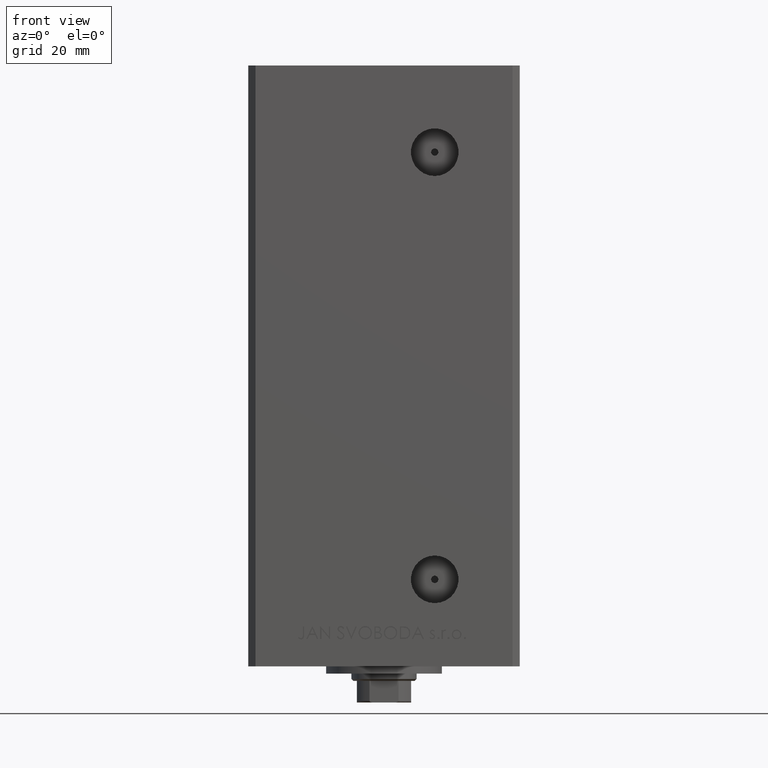
[diagram: clean part render]
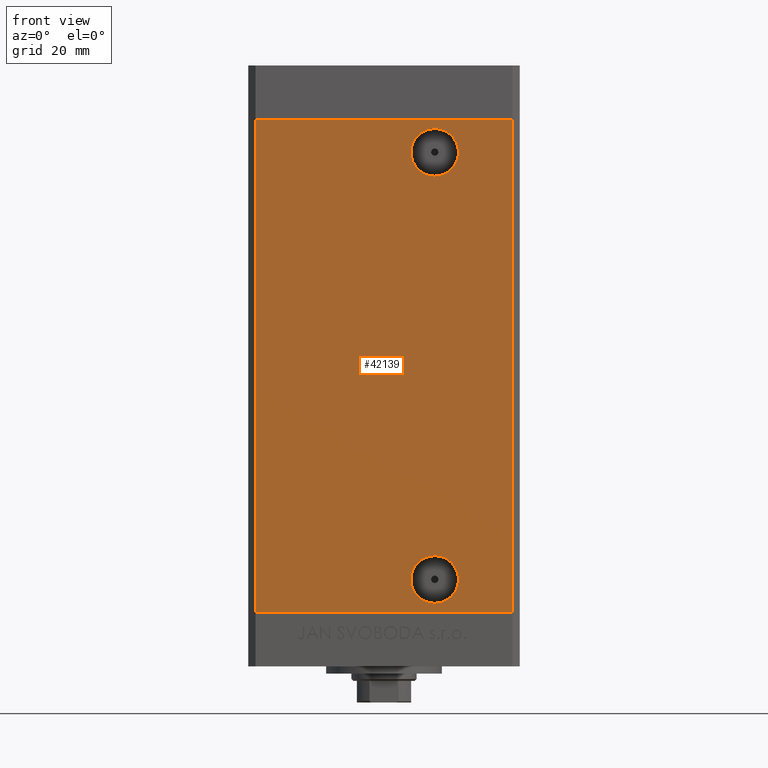
[diagram: same view with one face highlighted and labeled with its STEP entity id]
A machine part, front view. The second image highlights one B-rep face of the part: STEP entity #42139.
In plain terms, the highlighted planar face has unit normal (0, 1, 0).
Its self-contained STEP definition (entity closure, byte-faithful):
#856 = CARTESIAN_POINT ( 'NONE',  ( 13.99999999999999112, -32.50000000000000000, 120.4200000000000017 ) ) ;
#876 = DIRECTION ( 'NONE',  ( 0.000000000000000000, -0.000000000000000000, 1.000000000000000000 ) ) ;
#1252 = EDGE_CURVE ( 'NONE', #31384, #7564, #14773, .T. ) ;
#1285 = DIRECTION ( 'NONE',  ( 0.000000000000000000, 0.000000000000000000, -1.000000000000000000 ) ) ;
#1330 = LINE ( 'NONE', #48034, #8694 ) ;
#1381 = CARTESIAN_POINT ( 'NONE',  ( 13.99999999999999112, -32.50000000000000000, 127.0000000000000000 ) ) ;
#2718 = AXIS2_PLACEMENT_3D ( 'NONE', #22198, #3848, #15407 ) ;
#3104 = CARTESIAN_POINT ( 'NONE',  ( -35.49999999999999289, -32.50000000000000000, 0.000000000000000000 ) ) ;
#3848 = DIRECTION ( 'NONE',  ( -0.000000000000000000, 1.000000000000000000, -0.000000000000000000 ) ) ;
#3893 = CIRCLE ( 'NONE', #24001, 6.580000000000002736 ) ;
#4568 = DIRECTION ( 'NONE',  ( 0.000000000000000000, -1.000000000000000000, 0.000000000000000000 ) ) ;
#4901 = FACE_BOUND ( 'NONE', #21600, .T. ) ;
#5152 = FACE_BOUND ( 'NONE', #44222, .T. ) ;
#5408 = DIRECTION ( 'NONE',  ( -0.000000000000000000, 1.000000000000000000, -0.000000000000000000 ) ) ;
#5606 = DIRECTION ( 'NONE',  ( 1.000000000000000000, 0.000000000000000000, 0.000000000000000000 ) ) ;
#5868 = CARTESIAN_POINT ( 'NONE',  ( 35.49999999999999289, -32.50000000000000000, 136.0000000000000000 ) ) ;
#6376 = EDGE_CURVE ( 'NONE', #47390, #32452, #7618, .T. ) ;
#7422 = AXIS2_PLACEMENT_3D ( 'NONE', #35307, #20473, #876 ) ;
#7564 = VERTEX_POINT ( 'NONE', #856 ) ;
#7618 = CIRCLE ( 'NONE', #35685, 6.579999999999998295 ) ;
#7670 = EDGE_CURVE ( 'NONE', #32386, #17274, #33732, .T. ) ;
#7911 = AXIS2_PLACEMENT_3D ( 'NONE', #43011, #4568, #1285 ) ;
#8694 = VECTOR ( 'NONE', #5606, 1000.000000000000000 ) ;
#8967 = CARTESIAN_POINT ( 'NONE',  ( -35.49999999999999289, -32.50000000000000000, 136.0000000000000000 ) ) ;
#11901 = DIRECTION ( 'NONE',  ( -0.000000000000000000, -0.000000000000000000, -1.000000000000000000 ) ) ;
#12323 = CARTESIAN_POINT ( 'NONE',  ( 13.99999999999999112, -32.50000000000000000, 2.420000000000009699 ) ) ;
#13010 = VECTOR ( 'NONE', #32774, 1000.000000000000000 ) ;
#13264 = VERTEX_POINT ( 'NONE', #8967 ) ;
#14315 = EDGE_CURVE ( 'NONE', #13264, #32386, #1330, .T. ) ;
#14773 = CIRCLE ( 'NONE', #2718, 6.580000000000002736 ) ;
#15407 = DIRECTION ( 'NONE',  ( 0.000000000000000000, 0.000000000000000000, -1.000000000000000000 ) ) ;
#15575 = ORIENTED_EDGE ( 'NONE', *, *, #40797, .T. ) ;
#16323 = VERTEX_POINT ( 'NONE', #3104 ) ;
#17274 = VERTEX_POINT ( 'NONE', #18689 ) ;
#17749 = ORIENTED_EDGE ( 'NONE', *, *, #7670, .F. ) ;
#17808 = VECTOR ( 'NONE', #11901, 1000.000000000000000 ) ;
#18435 = LINE ( 'NONE', #33514, #13010 ) ;
#18633 = ORIENTED_EDGE ( 'NONE', *, *, #6376, .F. ) ;
#18689 = CARTESIAN_POINT ( 'NONE',  ( 35.49999999999999289, -32.50000000000000000, 0.000000000000000000 ) ) ;
#18721 = ORIENTED_EDGE ( 'NONE', *, *, #40952, .T. ) ;
#20098 = EDGE_CURVE ( 'NONE', #7564, #31384, #3893, .T. ) ;
#20225 = FACE_OUTER_BOUND ( 'NONE', #37758, .T. ) ;
#20473 = DIRECTION ( 'NONE',  ( 0.000000000000000000, 1.000000000000000000, 0.000000000000000000 ) ) ;
#20845 = CARTESIAN_POINT ( 'NONE',  ( 35.49999999999999289, -32.50000000000000000, 136.0000000000000000 ) ) ;
#21600 = EDGE_LOOP ( 'NONE', ( #35843, #18633 ) ) ;
#22198 = CARTESIAN_POINT ( 'NONE',  ( 13.99999999999999112, -32.50000000000000000, 127.0000000000000000 ) ) ;
#23775 = CARTESIAN_POINT ( 'NONE',  ( 13.99999999999999112, -32.50000000000000000, 9.000000000000007105 ) ) ;
#24001 = AXIS2_PLACEMENT_3D ( 'NONE', #1381, #5408, #44086 ) ;
#24056 = ORIENTED_EDGE ( 'NONE', *, *, #20098, .T. ) ;
#24061 = CARTESIAN_POINT ( 'NONE',  ( 13.99999999999999112, -32.50000000000000000, 133.5800000000000125 ) ) ;
#27157 = CIRCLE ( 'NONE', #7911, 6.579999999999998295 ) ;
#27791 = DIRECTION ( 'NONE',  ( 0.000000000000000000, -1.000000000000000000, 0.000000000000000000 ) ) ;
#28049 = EDGE_CURVE ( 'NONE', #32452, #47390, #27157, .T. ) ;
#31248 = CARTESIAN_POINT ( 'NONE',  ( -35.49999999999999289, -32.50000000000000000, 136.0000000000000000 ) ) ;
#31384 = VERTEX_POINT ( 'NONE', #24061 ) ;
#32026 = PLANE ( 'NONE',  #7422 ) ;
#32386 = VERTEX_POINT ( 'NONE', #20845 ) ;
#32452 = VERTEX_POINT ( 'NONE', #12323 ) ;
#32534 = VECTOR ( 'NONE', #41274, 1000.000000000000000 ) ;
#32774 = DIRECTION ( 'NONE',  ( 1.000000000000000000, 0.000000000000000000, 0.000000000000000000 ) ) ;
#33514 = CARTESIAN_POINT ( 'NONE',  ( -35.49999999999999289, -32.50000000000000000, 0.000000000000000000 ) ) ;
#33732 = LINE ( 'NONE', #5868, #32534 ) ;
#35003 = LINE ( 'NONE', #31248, #17808 ) ;
#35307 = CARTESIAN_POINT ( 'NONE',  ( -35.49999999999999289, -32.50000000000000000, 136.0000000000000000 ) ) ;
#35685 = AXIS2_PLACEMENT_3D ( 'NONE', #23775, #27791, #36068 ) ;
#35843 = ORIENTED_EDGE ( 'NONE', *, *, #28049, .F. ) ;
#36068 = DIRECTION ( 'NONE',  ( 0.000000000000000000, 0.000000000000000000, -1.000000000000000000 ) ) ;
#37758 = EDGE_LOOP ( 'NONE', ( #15575, #17749, #42347, #18721 ) ) ;
#38441 = ORIENTED_EDGE ( 'NONE', *, *, #1252, .T. ) ;
#40797 = EDGE_CURVE ( 'NONE', #16323, #17274, #18435, .T. ) ;
#40952 = EDGE_CURVE ( 'NONE', #13264, #16323, #35003, .T. ) ;
#41274 = DIRECTION ( 'NONE',  ( -0.000000000000000000, -0.000000000000000000, -1.000000000000000000 ) ) ;
#42139 = ADVANCED_FACE ( 'NONE', ( #4901, #20225, #5152 ), #32026, .F. ) ;
#42347 = ORIENTED_EDGE ( 'NONE', *, *, #14315, .F. ) ;
#43011 = CARTESIAN_POINT ( 'NONE',  ( 13.99999999999999112, -32.50000000000000000, 9.000000000000007105 ) ) ;
#43863 = CARTESIAN_POINT ( 'NONE',  ( 13.99999999999999112, -32.50000000000000000, 15.58000000000000718 ) ) ;
#44086 = DIRECTION ( 'NONE',  ( 0.000000000000000000, 0.000000000000000000, -1.000000000000000000 ) ) ;
#44222 = EDGE_LOOP ( 'NONE', ( #24056, #38441 ) ) ;
#47390 = VERTEX_POINT ( 'NONE', #43863 ) ;
#48034 = CARTESIAN_POINT ( 'NONE',  ( -35.49999999999999289, -32.50000000000000000, 136.0000000000000000 ) ) ;